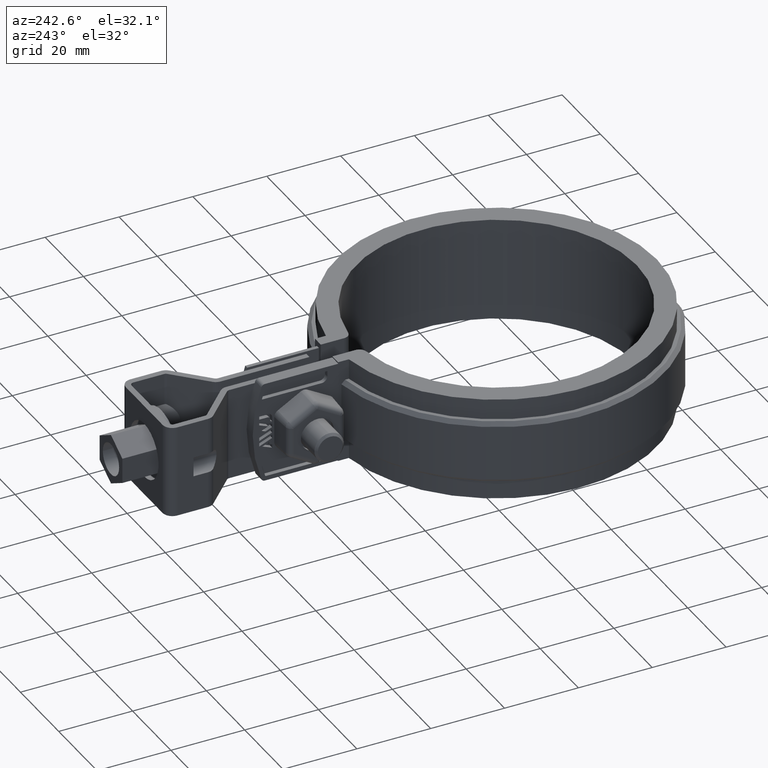
[diagram: clean part render]
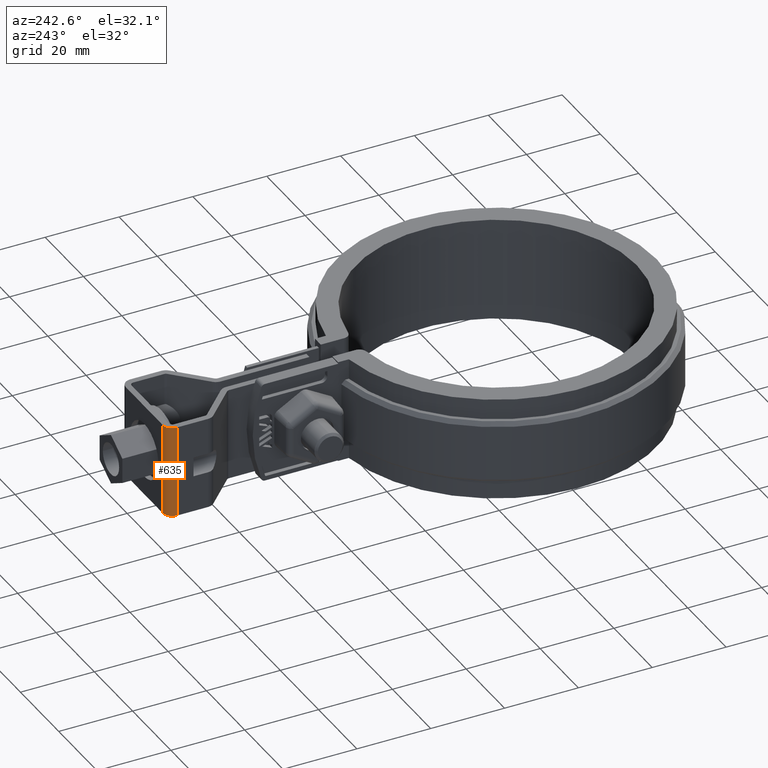
[diagram: same view with one face highlighted and labeled with its STEP entity id]
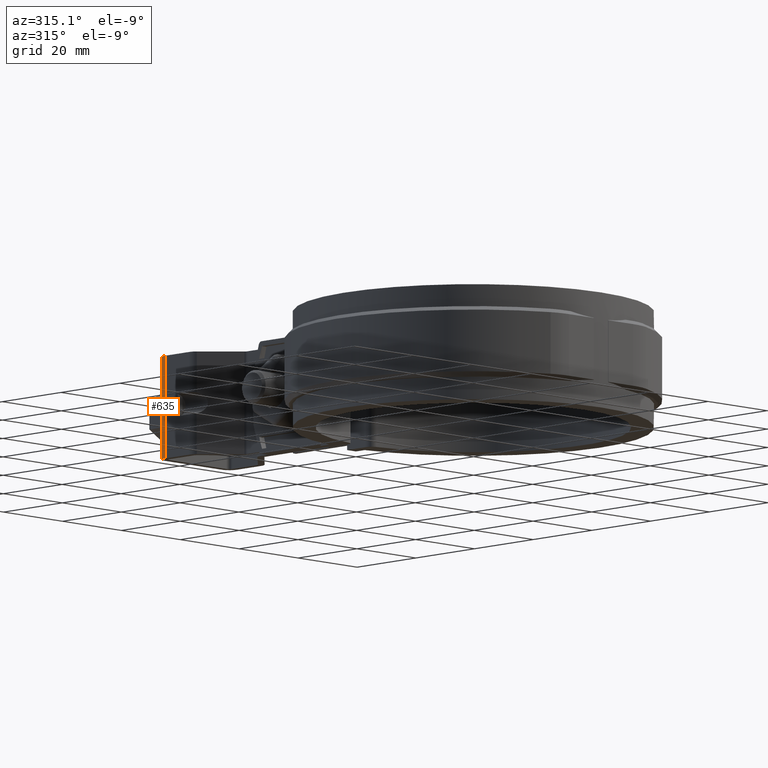
[diagram: same view with one face highlighted and labeled with its STEP entity id]
A machine part, auxiliary view. The second image highlights one B-rep face of the part: STEP entity #635.
A second angle (auxiliary view) of the same face is appended — the face is thin or edge-on in the first view.
In plain terms, the highlighted cylindrical surface (edge-blend (fillet) strip) has radius 2.6 mm, axis along (0, 0, -1).
Its self-contained STEP definition (entity closure, byte-faithful):
#635 = ADVANCED_FACE( '', ( #1187 ), #1188, .T. );
#1187 = FACE_OUTER_BOUND( '', #2495, .T. );
#1188 = CYLINDRICAL_SURFACE( '', #2496, 2.59999999999999 );
#2495 = EDGE_LOOP( '', ( #5791, #5792, #5793, #5794 ) );
#2496 = AXIS2_PLACEMENT_3D( '', #5795, #5796, #5797 );
#5791 = ORIENTED_EDGE( '', *, *, #7750, .F. );
#5792 = ORIENTED_EDGE( '', *, *, #7822, .F. );
#5793 = ORIENTED_EDGE( '', *, *, #7727, .T. );
#5794 = ORIENTED_EDGE( '', *, *, #7795, .T. );
#5795 = CARTESIAN_POINT( '', ( -9.64999999999716, 92.7951037457392, 12.5000000000036 ) );
#5796 = DIRECTION( '', ( 3.05802634389892E-014, 2.84772205816503E-014, -1.00000000000000 ) );
#5797 = DIRECTION( '', ( 2.75928290874320E-015, 1.00000000000000, 2.84772205816504E-014 ) );
#7727 = EDGE_CURVE( '', #9040, #9038, #9041, .T. );
#7750 = EDGE_CURVE( '', #9083, #9085, #9086, .T. );
#7795 = EDGE_CURVE( '', #9038, #9085, #9160, .T. );
#7822 = EDGE_CURVE( '', #9040, #9083, #9198, .T. );
#9038 = VERTEX_POINT( '', #12892 );
#9040 = VERTEX_POINT( '', #12895 );
#9041 = CIRCLE( '', #12896, 2.59999999999999 );
#9083 = VERTEX_POINT( '', #12951 );
#9085 = VERTEX_POINT( '', #12954 );
#9086 = CIRCLE( '', #12955, 2.59999999999999 );
#9160 = LINE( '', #13084, #13085 );
#9198 = LINE( '', #13155, #13156 );
#12892 = CARTESIAN_POINT( '', ( -9.64999999999715, 95.3951037457391, 12.5000000000037 ) );
#12895 = CARTESIAN_POINT( '', ( -12.2499999999971, 92.7951037457392, 12.5000000000035 ) );
#12896 = AXIS2_PLACEMENT_3D( '', #14787, #14788, #14789 );
#12951 = CARTESIAN_POINT( '', ( -12.2499999999964, 92.7951037457399, -12.4999999999965 ) );
#12954 = CARTESIAN_POINT( '', ( -9.64999999999639, 95.3951037457398, -12.4999999999963 ) );
#12955 = AXIS2_PLACEMENT_3D( '', #14828, #14829, #14830 );
#13084 = CARTESIAN_POINT( '', ( -9.64999999999715, 95.3951037457391, 12.5000000000037 ) );
#13085 = VECTOR( '', #14893, 1000.00000000000 );
#13155 = CARTESIAN_POINT( '', ( -12.2499999999971, 92.7951037457392, 12.5000000000035 ) );
#13156 = VECTOR( '', #14941, 1000.00000000000 );
#14787 = CARTESIAN_POINT( '', ( -9.64999999999716, 92.7951037457392, 12.5000000000036 ) );
#14788 = DIRECTION( '', ( 3.05802634389892E-014, 2.84772205816503E-014, -1.00000000000000 ) );
#14789 = DIRECTION( '', ( -1.00000000000000, 0.000000000000000, -3.05802634389892E-014 ) );
#14828 = CARTESIAN_POINT( '', ( -9.64999999999640, 92.7951037457399, -12.4999999999964 ) );
#14829 = DIRECTION( '', ( 3.05802634389892E-014, 2.84772205816503E-014, -1.00000000000000 ) );
#14830 = DIRECTION( '', ( -1.00000000000000, 0.000000000000000, -3.05802634389892E-014 ) );
#14893 = DIRECTION( '', ( 3.05802634389892E-014, 2.84772205816503E-014, -1.00000000000000 ) );
#14941 = DIRECTION( '', ( 3.05802634389892E-014, 2.84772205816503E-014, -1.00000000000000 ) );